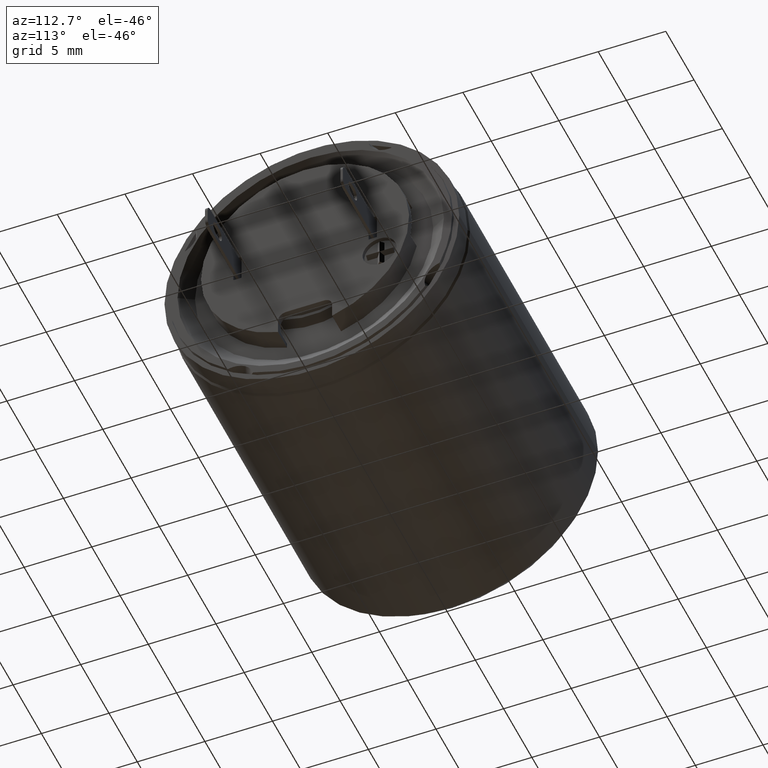
[diagram: clean part render]
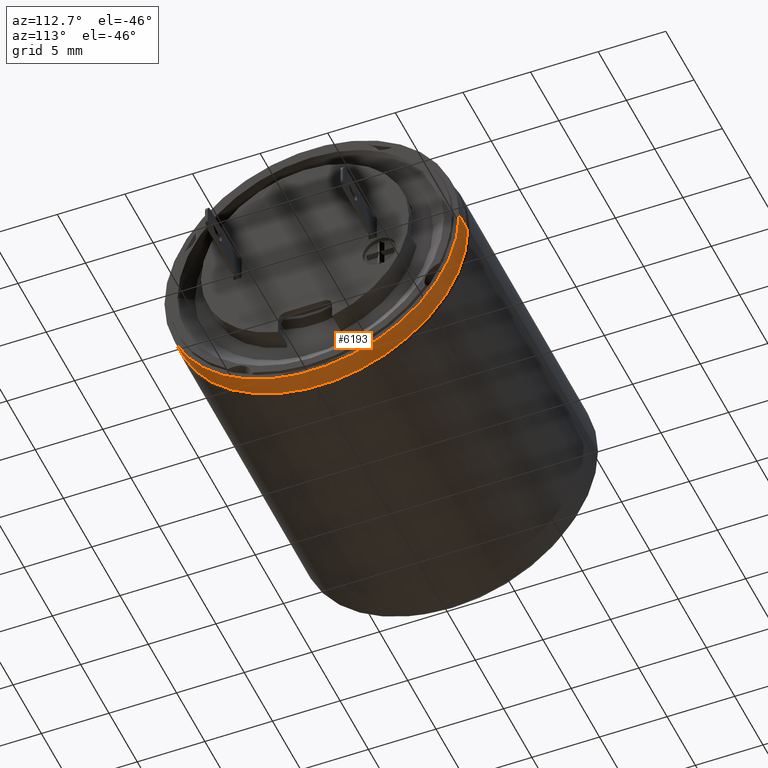
[diagram: same view with one face highlighted and labeled with its STEP entity id]
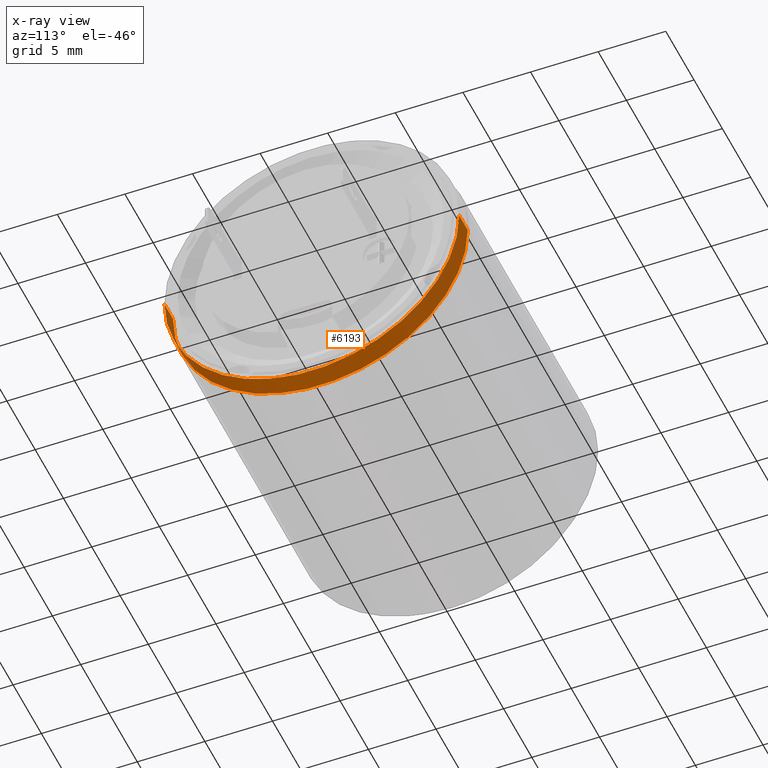
[diagram: x-ray of the same camera — body ghosted, the highlighted face saturated]
A machine part, auxiliary view. The second image highlights one B-rep face of the part: STEP entity #6193.
The next image is the same camera in x-ray: the body ghosted, the highlighted face saturated — about 0% of this face is hidden behind the body in this view.
In plain terms, the highlighted cylindrical surface (partial cylindrical patch) has radius 10.9 mm, axis along (-1, 0, 0).
Its self-contained STEP definition (entity closure, byte-faithful):
#610=CARTESIAN_POINT('',(7.4E0,0.E0,0.E0));
#611=DIRECTION('',(1.E0,0.E0,0.E0));
#612=DIRECTION('',(0.E0,-1.E0,0.E0));
#613=AXIS2_PLACEMENT_3D('',#610,#611,#612);
#615=DIRECTION('',(-1.E0,-1.480297366167E-13,0.E0));
#616=VECTOR('',#615,1.5E0);
#617=CARTESIAN_POINT('',(8.9E0,1.09E1,0.E0));
#618=LINE('',#617,#616);
#619=DIRECTION('',(1.E0,-1.219765029721E-13,0.E0));
#620=VECTOR('',#619,1.5E0);
#621=CARTESIAN_POINT('',(7.4E0,-1.09E1,0.E0));
#622=LINE('',#621,#620);
#628=CARTESIAN_POINT('',(8.9E0,1.115653234024E-14,0.E0));
#629=DIRECTION('',(-1.E0,0.E0,0.E0));
#630=DIRECTION('',(0.E0,1.E0,0.E0));
#631=AXIS2_PLACEMENT_3D('',#628,#629,#630);
#4238=CARTESIAN_POINT('',(8.9E0,1.09E1,0.E0));
#4239=CARTESIAN_POINT('',(7.4E0,1.09E1,0.E0));
#4240=VERTEX_POINT('',#4238);
#4241=VERTEX_POINT('',#4239);
#4242=CARTESIAN_POINT('',(8.9E0,-1.09E1,0.E0));
#4243=VERTEX_POINT('',#4242);
#4244=CARTESIAN_POINT('',(7.4E0,-1.09E1,0.E0));
#4245=VERTEX_POINT('',#4244);
#6179=CARTESIAN_POINT('',(8.948501975218E0,1.115059256137E-14,0.E0));
#6180=DIRECTION('',(-1.E0,0.E0,0.E0));
#6181=DIRECTION('',(0.E0,1.E0,0.E0));
#6182=AXIS2_PLACEMENT_3D('',#6179,#6180,#6181);
#6183=CYLINDRICAL_SURFACE('',#6182,1.09E1);
#6185=ORIENTED_EDGE('',*,*,#6184,.T.);
#6186=ORIENTED_EDGE('',*,*,#6174,.F.);
#6188=ORIENTED_EDGE('',*,*,#6187,.T.);
#6190=ORIENTED_EDGE('',*,*,#6189,.F.);
#6191=EDGE_LOOP('',(#6185,#6186,#6188,#6190));
#6192=FACE_OUTER_BOUND('',#6191,.F.);
#6193=ADVANCED_FACE('',(#6192),#6183,.T.);
#614=CIRCLE('',#613,1.09E1);
#632=CIRCLE('',#631,1.09E1);
#6174=EDGE_CURVE('',#4245,#4241,#614,.T.);
#6184=EDGE_CURVE('',#4240,#4241,#618,.T.);
#6187=EDGE_CURVE('',#4245,#4243,#622,.T.);
#6189=EDGE_CURVE('',#4240,#4243,#632,.T.);